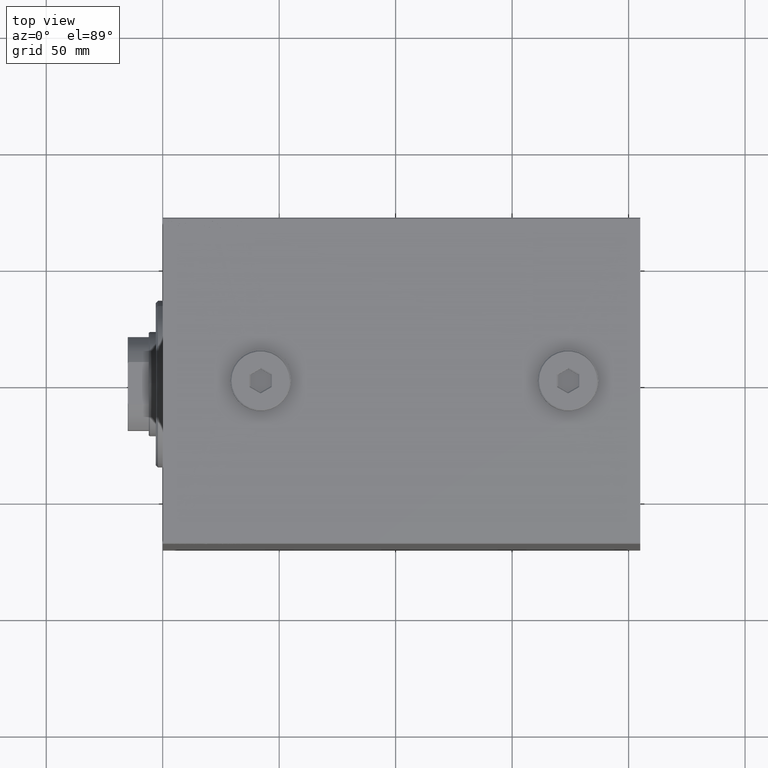
[diagram: clean part render]
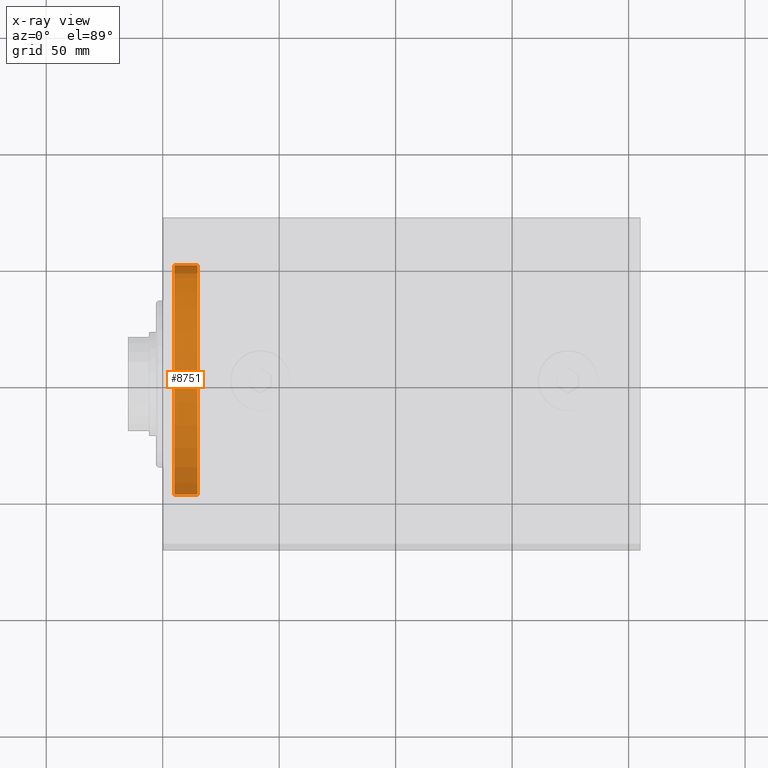
[diagram: x-ray — body ghosted, one internal face saturated and labeled with its STEP entity id]
A machine part, top view, then the same camera in x-ray: the body is ghosted and one INTERNAL B-rep face — a face not visible from any outside direction — is saturated and labeled: STEP entity #8751.
In plain terms, the highlighted cylindrical surface (partial cylindrical patch) has radius 51 mm, axis along (-1, 0, 0).
Its self-contained STEP definition (entity closure, byte-faithful):
#55 = VERTEX_POINT ( 'NONE', #26509 ) ;
#107 = EDGE_CURVE ( 'NONE', #55, #26535, #19846, .T. ) ;
#120 = AXIS2_PLACEMENT_3D ( 'NONE', #1368, #694, #15128 ) ;
#403 = CARTESIAN_POINT ( 'NONE',  ( -15.00000000000000000, 6.245698675651500444E-15, 51.00000000000000000 ) ) ;
#694 = DIRECTION ( 'NONE',  ( -1.000000000000000000, 0.000000000000000000, 0.000000000000000000 ) ) ;
#845 = CIRCLE ( 'NONE', #120, 51.00000000000000000 ) ;
#1300 = VECTOR ( 'NONE', #21965, 1000.000000000000000 ) ;
#1368 = CARTESIAN_POINT ( 'NONE',  ( -5.000000000000000000, 0.000000000000000000, 0.000000000000000000 ) ) ;
#2121 = EDGE_LOOP ( 'NONE', ( #33926, #38036, #10556, #31608 ) ) ;
#3054 = CARTESIAN_POINT ( 'NONE',  ( -15.00000000000000000, 6.245698675651500444E-15, 51.00000000000000000 ) ) ;
#7845 = AXIS2_PLACEMENT_3D ( 'NONE', #39803, #43457, #18947 ) ;
#7988 = EDGE_CURVE ( 'NONE', #34095, #37858, #35486, .T. ) ;
#8600 = CIRCLE ( 'NONE', #7845, 51.00000000000000000 ) ;
#8751 = ADVANCED_FACE ( 'NONE', ( #30995 ), #19787, .T. ) ;
#9456 = DIRECTION ( 'NONE',  ( 1.000000000000000000, -0.000000000000000000, -0.000000000000000000 ) ) ;
#10556 = ORIENTED_EDGE ( 'NONE', *, *, #22367, .T. ) ;
#15128 = DIRECTION ( 'NONE',  ( 0.000000000000000000, 0.000000000000000000, 1.000000000000000000 ) ) ;
#18947 = DIRECTION ( 'NONE',  ( 0.000000000000000000, 0.000000000000000000, 1.000000000000000000 ) ) ;
#19787 = CYLINDRICAL_SURFACE ( 'NONE', #37925, 51.00000000000000000 ) ;
#19846 = LINE ( 'NONE', #34490, #31943 ) ;
#20980 = CARTESIAN_POINT ( 'NONE',  ( -5.000000000000000000, 0.000000000000000000, -51.00000000000000000 ) ) ;
#21965 = DIRECTION ( 'NONE',  ( 1.000000000000000000, -0.000000000000000000, -0.000000000000000000 ) ) ;
#22367 = EDGE_CURVE ( 'NONE', #37858, #26535, #845, .T. ) ;
#23680 = DIRECTION ( 'NONE',  ( 0.000000000000000000, 0.000000000000000000, -1.000000000000000000 ) ) ;
#26509 = CARTESIAN_POINT ( 'NONE',  ( -15.00000000000000000, 0.000000000000000000, -51.00000000000000000 ) ) ;
#26535 = VERTEX_POINT ( 'NONE', #20980 ) ;
#26726 = DIRECTION ( 'NONE',  ( 1.000000000000000000, -0.000000000000000000, -0.000000000000000000 ) ) ;
#30995 = FACE_OUTER_BOUND ( 'NONE', #2121, .T. ) ;
#31314 = EDGE_CURVE ( 'NONE', #34095, #55, #8600, .T. ) ;
#31608 = ORIENTED_EDGE ( 'NONE', *, *, #107, .F. ) ;
#31943 = VECTOR ( 'NONE', #26726, 1000.000000000000000 ) ;
#33926 = ORIENTED_EDGE ( 'NONE', *, *, #31314, .F. ) ;
#34095 = VERTEX_POINT ( 'NONE', #3054 ) ;
#34317 = CARTESIAN_POINT ( 'NONE',  ( -5.000000000000000000, 6.245698675651500444E-15, 51.00000000000000000 ) ) ;
#34490 = CARTESIAN_POINT ( 'NONE',  ( -15.00000000000000000, 0.000000000000000000, -51.00000000000000000 ) ) ;
#35486 = LINE ( 'NONE', #403, #1300 ) ;
#37858 = VERTEX_POINT ( 'NONE', #34317 ) ;
#37925 = AXIS2_PLACEMENT_3D ( 'NONE', #41297, #9456, #23680 ) ;
#38036 = ORIENTED_EDGE ( 'NONE', *, *, #7988, .T. ) ;
#39803 = CARTESIAN_POINT ( 'NONE',  ( -15.00000000000000000, 0.000000000000000000, 0.000000000000000000 ) ) ;
#41297 = CARTESIAN_POINT ( 'NONE',  ( -15.00000000000000000, 0.000000000000000000, 0.000000000000000000 ) ) ;
#43457 = DIRECTION ( 'NONE',  ( -1.000000000000000000, 0.000000000000000000, 0.000000000000000000 ) ) ;